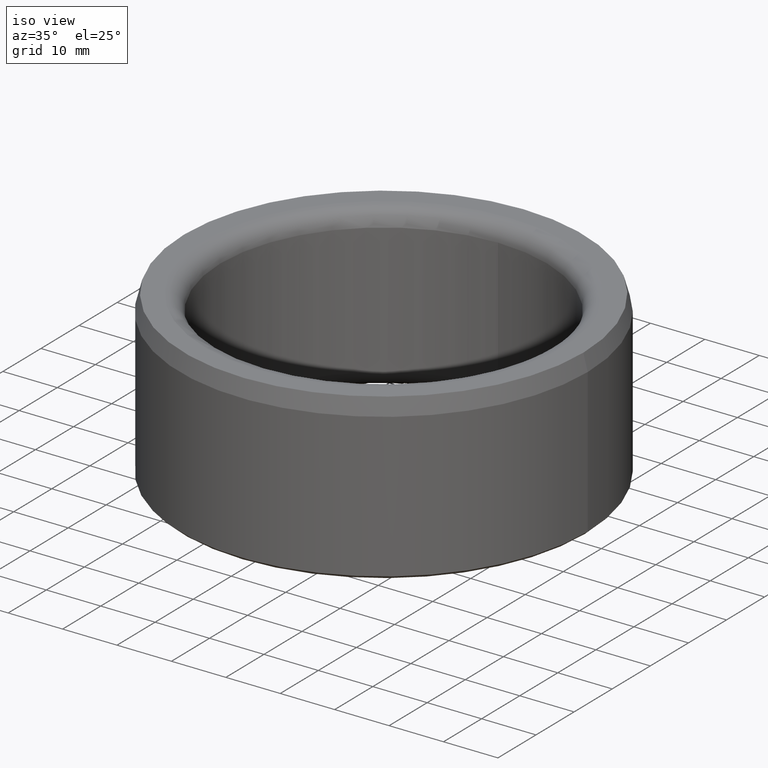
[diagram: clean part render]
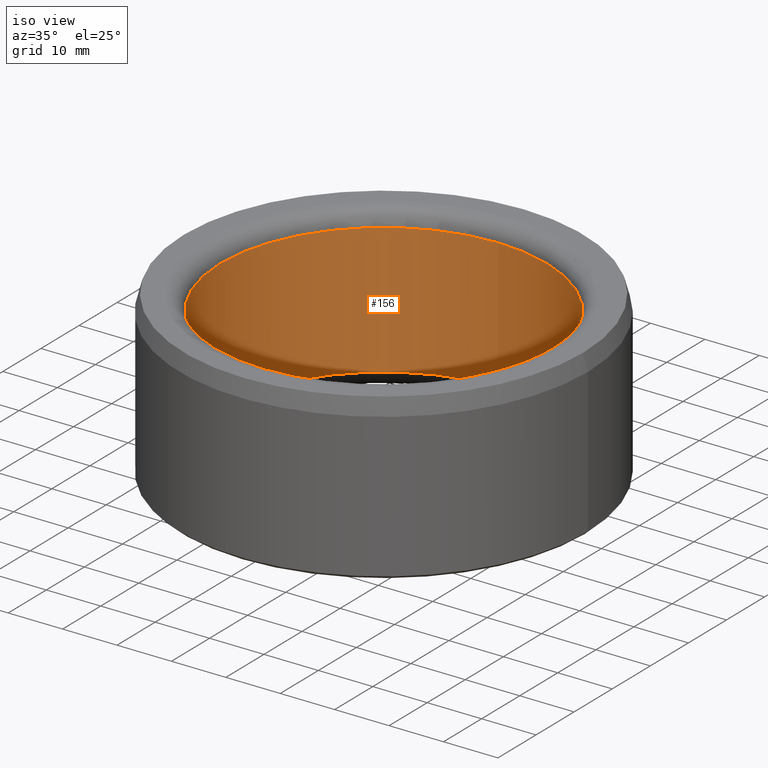
[diagram: same view with one face highlighted and labeled with its STEP entity id]
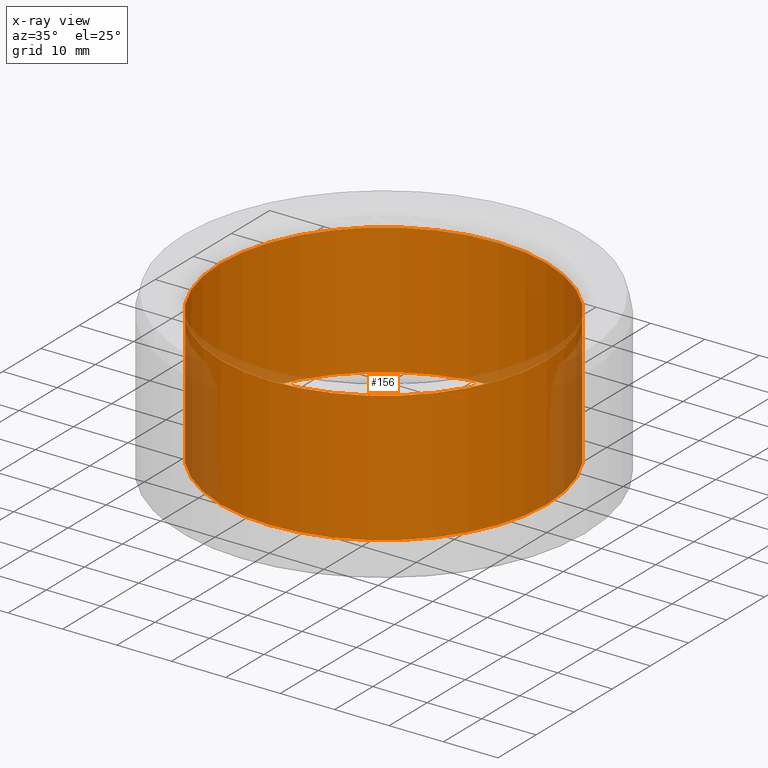
[diagram: x-ray of the same camera — body ghosted, the highlighted face saturated]
A machine part, iso view. The second image highlights one B-rep face of the part: STEP entity #156.
The next image is the same camera in x-ray: the body ghosted, the highlighted face saturated — about 10% of this face is hidden behind the body in this view.
In plain terms, the highlighted cylindrical surface (bore or boss wall) has radius 30 mm, axis along (0, -0, -1).
Its self-contained STEP definition (entity closure, byte-faithful):
#156=ADVANCED_FACE('',(#172,#173),#174,.F.);
#172=FACE_OUTER_BOUND('',#197,.T.);
#173=FACE_OUTER_BOUND('',#198,.T.);
#174=CYLINDRICAL_SURFACE('',#199,0.03);
#197=EDGE_LOOP('',(#227));
#198=EDGE_LOOP('',(#228));
#199=AXIS2_PLACEMENT_3D('',#229,#230,#231);
#227=ORIENTED_EDGE('',*,*,#253,.T.);
#228=ORIENTED_EDGE('',*,*,#256,.T.);
#229=CARTESIAN_POINT('',(0.0,0.0,0.0));
#230=DIRECTION('',(0.0,-6.12323399573677E-017,-1.0));
#231=DIRECTION('',(0.0,1.0,-6.12323399573677E-017));
#253=EDGE_CURVE('',#262,#262,#263,.T.);
#256=EDGE_CURVE('',#268,#268,#269,.T.);
#262=VERTEX_POINT('',#278);
#263=CIRCLE('',#279,0.03);
#268=VERTEX_POINT('',#284);
#269=CIRCLE('',#285,0.03);
#278=CARTESIAN_POINT('',(0.0,0.03,0.003));
#279=AXIS2_PLACEMENT_3D('',#295,#296,#297);
#284=CARTESIAN_POINT('',(0.0,-0.03,0.027));
#285=AXIS2_PLACEMENT_3D('',#304,#305,#306);
#295=CARTESIAN_POINT('',(0.0,1.83697019872103E-019,0.003));
#296=DIRECTION('',(0.0,-6.12323399573677E-017,-1.0));
#297=DIRECTION('',(0.0,1.0,-6.12323399573677E-017));
#304=CARTESIAN_POINT('',(0.0,1.65327317884893E-018,0.027));
#305=DIRECTION('',(0.0,6.12323399573677E-017,1.0));
#306=DIRECTION('',(0.0,-1.0,6.12323399573677E-017));